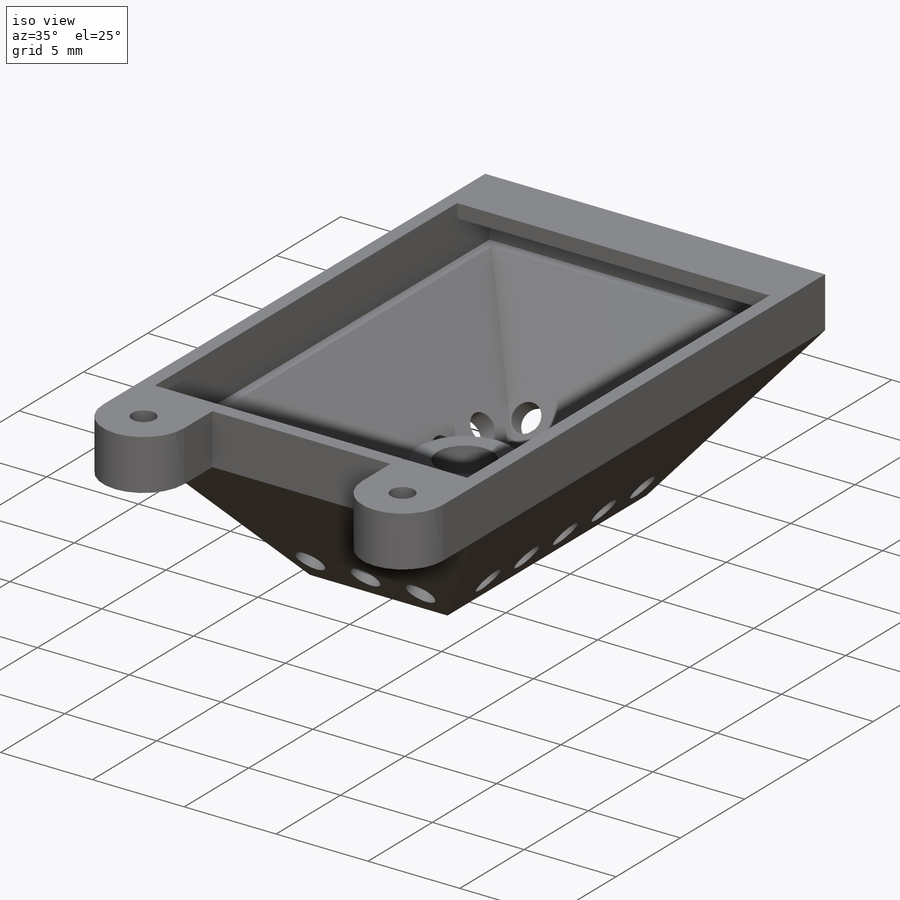
[diagram: iso view]
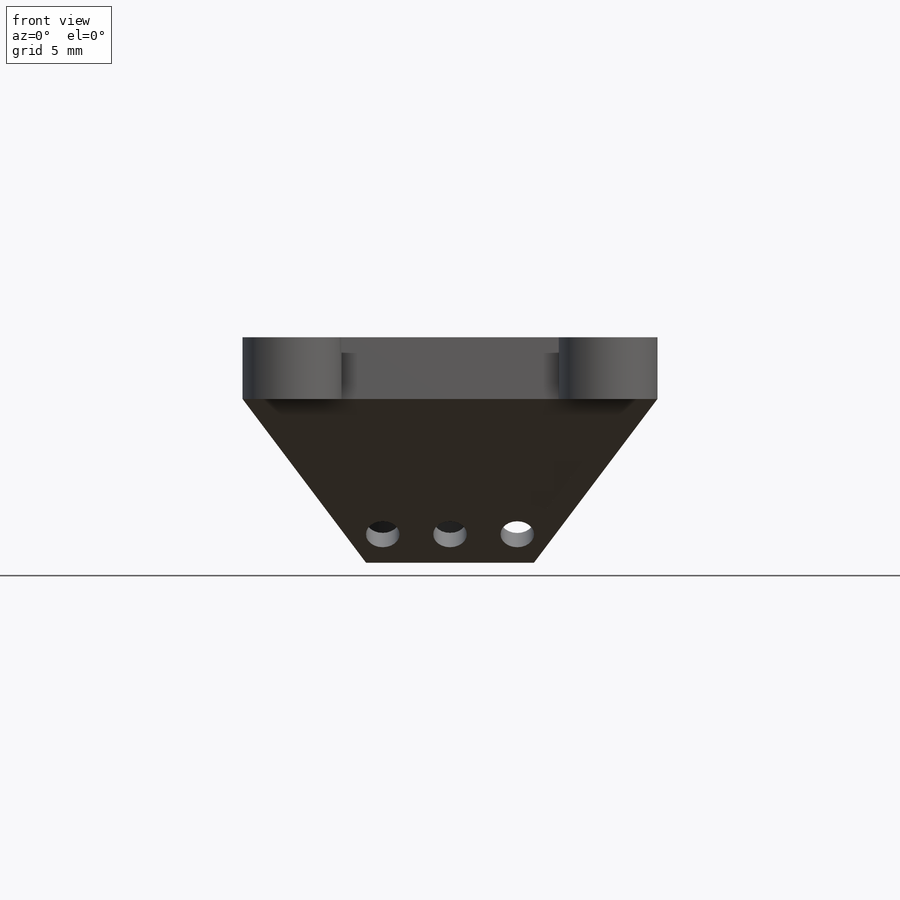
[diagram: front view]
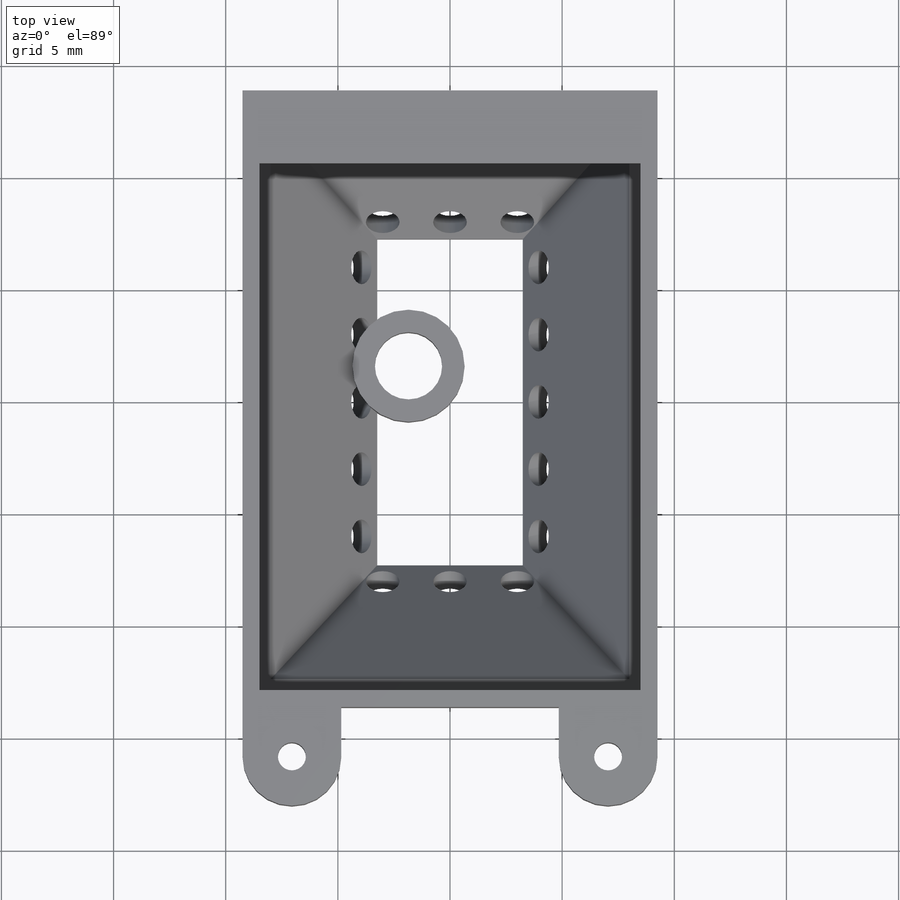
[diagram: top view]
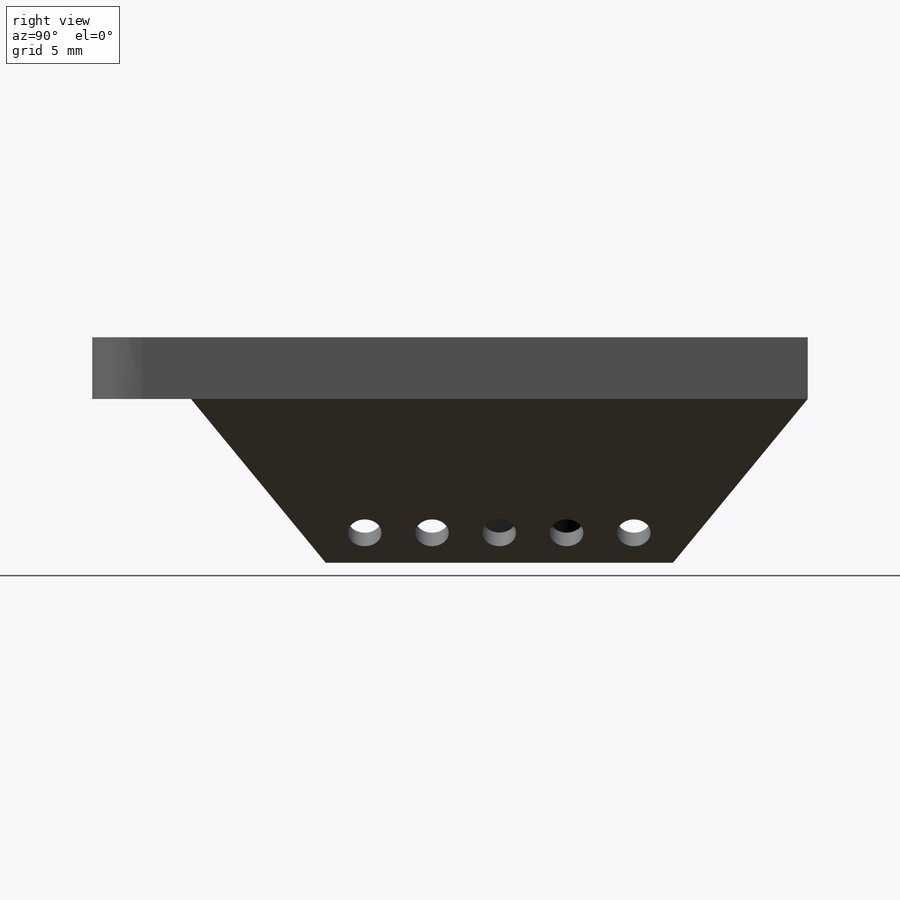
[diagram: right view]
SOLIDWORKS PART (.sldprt)
format: sldprt  version: not decoded by parser v0  size: 400,896 bytes
history: native  units: mm
features: sketch x11, cut_extrude x5, mirror x3, extrude x3, material x1, plane x1, shell x1 (+13 scaffold rows collapsed)
feature tree (38):
  scaffold x13  (default folders/planes/origin — collapsed)
  material  "Material <not specified>"
  sketch  "Sketch1"  dims[c1.D3=4.2mm c1.D1=1.6mm c1.D2=2.5mm c1.D4=7.49mm c1.D5=15.49mm c2.D1=~1.307016mm]
  plane  "Plane1"  Offset=7.3mm
  sketch  "Sketch2"  dims[D1=27.5mm D2=18.5mm]
  sketch  "Sketch3"  dims[c1.D1=3.0mm c1.D2=1.6mm c1.D3=1.85mm c2.D2=1.6mm]
  cut_extrude  "Cut-Extrude1"  [1 undecoded]
  shell  "Shell1"  Thickness=1mm
  sketch  "Sketch19"
  cut_extrude  "Cut-Extrude5"  Depth=4.7mm
  sketch  "Sketch4"  dims[D1=1.5mm D2=1.17mm D3=3.0 D4=3.0]
  cut_extrude  "Cut-Extrude2"  [1 undecoded]
  mirror  "Mirror1"
  sketch  "Sketch5"  dims[D1=1.5mm D2=1.17mm D3=0.0mm D4=2.0 D5=2.0]
  cut_extrude  "Cut-Extrude3"  [1 undecoded]
  mirror  "Mirror2"
  sketch  "Sketch6"
  cut_extrude  "Cut-Extrude4"  [1 undecoded]
  sketch  "Sketch7"  dims[c1.D1=0.7mm c1.D2=0.7mm c1.D3=0.75mm c1.D4=0.75mm c2.D1=0.7mm c2.D2=0.7mm]
  extrude  "Boss-Extrude2"  Depth=2.75mm
  sketch  "Sketch16"  dims[D2=1.25mm D1=4.4mm D3=2.2mm]
  extrude  "Boss-Extrude9"  [1 undecoded]
  mirror  "Mirror7"
  sketch  "Sketch17"
  sketch  "Sketch18"  dims[D1=2.5mm]
  extrude  "Boss-Extrude10"  Depth=0.75mm
decode coverage: 12 of 23 modeling features carry decoded parameters
note: ~ marks probable driven/reference dimensions
note: 5 parameter values undecoded
summary: no parameter record found for 5 features
note: suppression state not decoded; provenance and decode notes live in map.json
